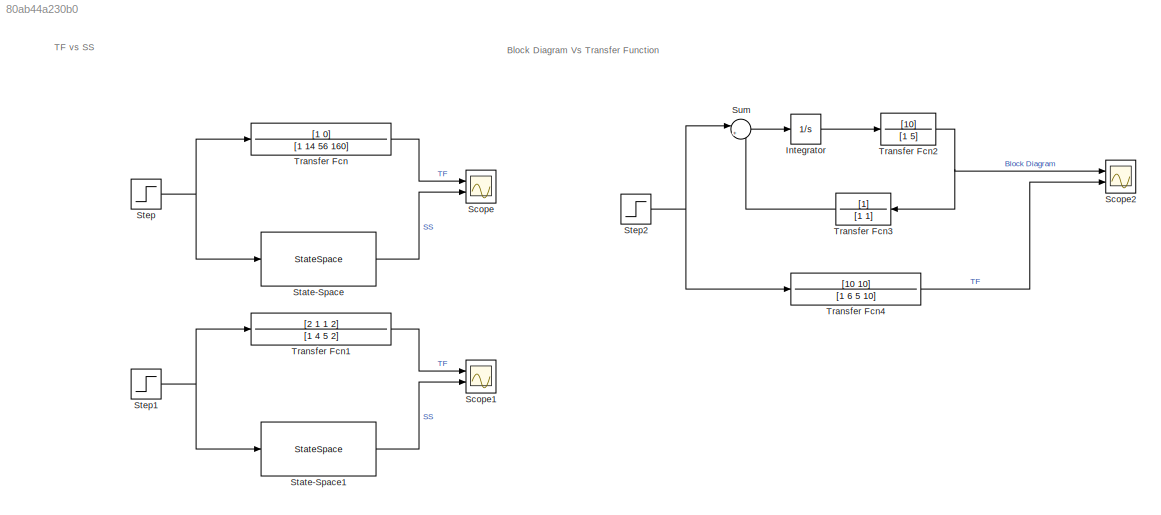
MODEL slx_80ab44a230b0
KIND model
CONFIG AbsTol = auto
CONFIG EnableMultiTasking = off
CONFIG FixedStep = auto
CONFIG MaxStep = 10e-3
CONFIG MinStep = auto
CONFIG RelTol = 1e-3
CONFIG SampleTimeConstraint = Unconstrained
CONFIG SolverName = VariableStepAuto
CONFIG StartTime = 0.0
CONFIG StopTime = 10.0
BLOCK [Integrator] Integrator
  Ports = [1, 1]
BLOCK [Scope] Scope
  Floating = off
  NumInputPorts = 2
  Ports = [2]
  ScopeSpecificationString = Simulink.scopes.TimeScopeBlockCfg('CurrentConfiguration', extmgr.ConfigurationSet(extmgr.Configuration('Core','General UI',true),extmgr.Configuration('Core','Source UI',true),extmgr.Configuration('Sources','WiredSimulink',true),extmgr.Configuration('Visuals','Time Domain',true,'SerializedDisplays',{struct('MinYLimReal','-0.00384','MaxYLimReal','0.01441','YLabelReal','','MinYLimMag','0.00000','MaxY...<+1545ch>
BLOCK [Scope] Scope1
  Floating = off
  NumInputPorts = 2
  Ports = [2]
  ScopeSpecificationString = Simulink.scopes.TimeScopeBlockCfg('CurrentConfiguration', extmgr.ConfigurationSet(extmgr.Configuration('Core','General UI',true),extmgr.Configuration('Core','Source UI',true),extmgr.Configuration('Sources','WiredSimulink',true,'DataLoggingVariableName','ScopeData1'),extmgr.Configuration('Visuals','Time Domain',true,'SerializedDisplays',{struct('MinYLimReal','-0.29685','MaxYLimReal','2.25521','YLab...<+1584ch>
BLOCK [Scope] Scope2
  Floating = off
  NumInputPorts = 2
  Ports = [2]
  ScopeSpecificationString = Simulink.scopes.TimeScopeBlockCfg('CurrentConfiguration', extmgr.ConfigurationSet(extmgr.Configuration('Core','General UI',true),extmgr.Configuration('Core','Source UI',true),extmgr.Configuration('Sources','WiredSimulink',true,'DataLoggingVariableName','ScopeData2'),extmgr.Configuration('Visuals','Time Domain',true,'SerializedDisplays',{struct('MinYLimReal','-0.2408','MaxYLimReal','2.16717','YLabe...<+1593ch>
BLOCK [StateSpace] State-Space
  A = [0 1 0;0 0 1;-160 -56 -14;]
  B = [0; 1; -14]
  C = [1 0 0]
  D = [0]
  InitialCondition = 0
  ParameterTunability = Optimized
  Ports = [1, 1]
BLOCK [StateSpace] State-Space1
  A = [0 1 0;0 0 1;-2 -5 -4;]
  B = [-7; 19; -43]
  C = [1 0 0]
  D = [2]
  InitialCondition = 0
  ParameterTunability = Optimized
  Ports = [1, 1]
BLOCK [Step] Step
  SampleTime = 0
BLOCK [Step] Step1
  SampleTime = 0
BLOCK [Step] Step2
  SampleTime = 0
BLOCK [Sum] Sum
  Inputs = |+-
  Ports = [2, 1]
BLOCK [TransferFcn] Transfer Fcn
  Denominator = [1 14 56 160]
  Numerator = [1 0]
BLOCK [TransferFcn] Transfer Fcn1
  Denominator = [1 4 5 2]
  Numerator = [2 1 1 2]
BLOCK [TransferFcn] Transfer Fcn2
  Denominator = [1 5]
  Numerator = [10]
BLOCK [TransferFcn] Transfer Fcn3
  Denominator = [1 1]
BLOCK [TransferFcn] Transfer Fcn4
  Denominator = [1 6 5 10]
  Numerator = [10 10]
ANNOTATION (root): TF vs SS
ANNOTATION (root): Block Diagram Vs Transfer Function
LINE Integrator:1 -> Transfer Fcn2:1
LINE State-Space1:1 -> Scope1:2
LINE State-Space:1 -> Scope:2
NET Step1:1 -> State-Space1:1, Transfer Fcn1:1
NET Step2:1 -> Sum:1, Transfer Fcn4:1
NET Step:1 -> State-Space:1, Transfer Fcn:1
LINE Sum:1 -> Integrator:1
LINE Transfer Fcn1:1 -> Scope1:1
NET Transfer Fcn2:1 -> Scope2:1, Transfer Fcn3:1
LINE Transfer Fcn3:1 -> Sum:2
LINE Transfer Fcn4:1 -> Scope2:2
LINE Transfer Fcn:1 -> Scope:1
note: NET lines group one-source signal fan-out (src -> all destinations, sorted); 1:1 wires keep LINE
